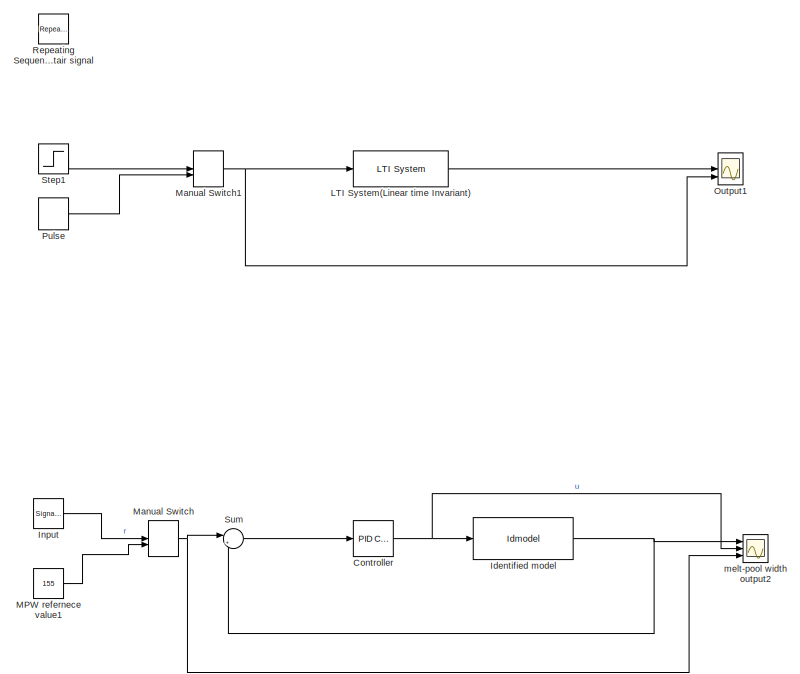
[diagram: root canvas - part 1/3, top right region]
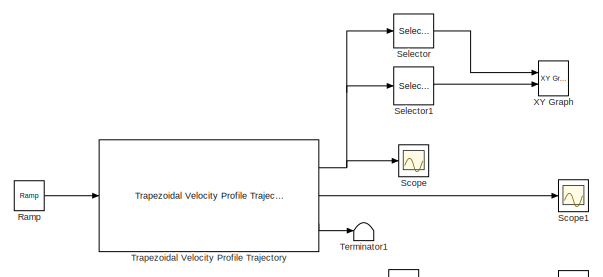
[diagram: root canvas - part 2/3, middle left region]
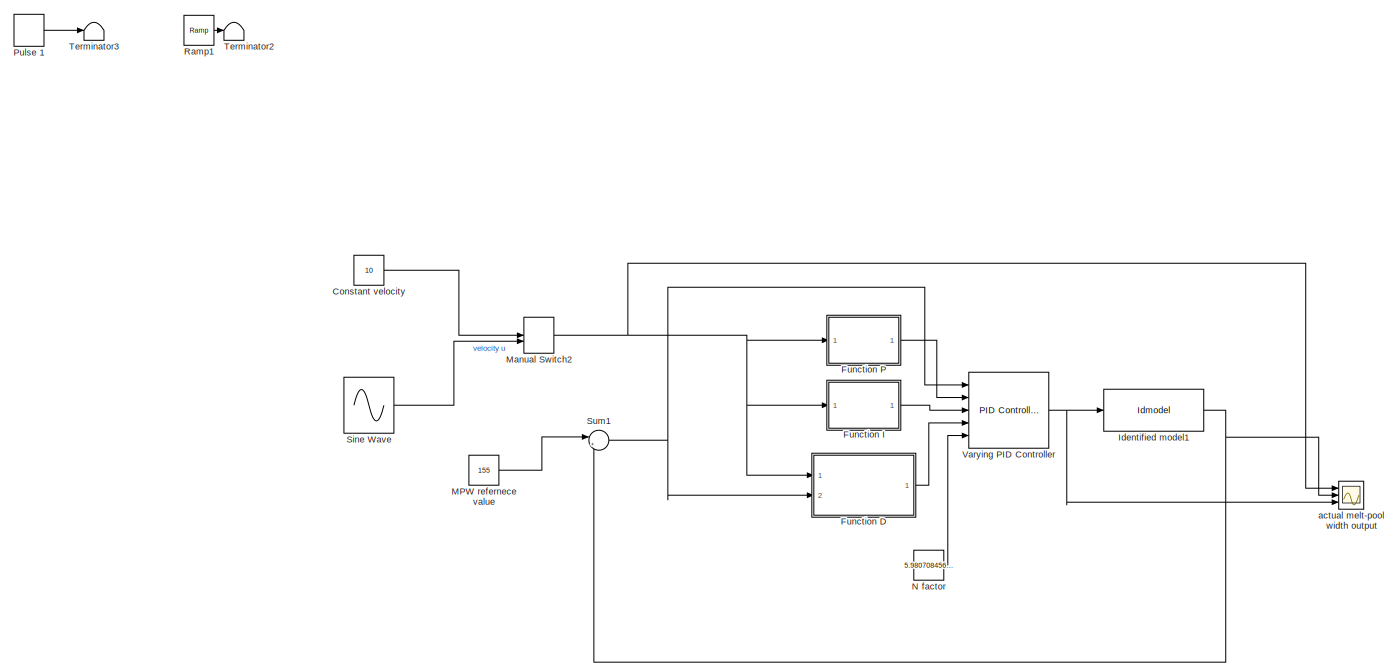
[diagram: root canvas - part 3/3, full width, bottom band]
MODEL slx_77fdc02588f1
KIND model
CONFIG AbsTol = auto
CONFIG EnableMultiTasking = off
CONFIG FixedStep = auto
CONFIG MaxStep = auto
CONFIG MinStep = auto
CONFIG RelTol = 1e-3
CONFIG SampleTimeConstraint = Unconstrained
CONFIG Solver = VariableStepAuto
CONFIG SolverName = VariableStepAuto
CONFIG StartTime = 0.0
CONFIG StopTime = 10
BLOCK [Constant] Constant velocity
  Value = 10
BLOCK [Reference] Controller  REF=simulink/Continuous/PID Controller
  Ports = [1, 1]
  SourceBlock = simulink/Continuous/PID Controller
  SourceProductBaseCode = SL
  SourceType = PID 1dof
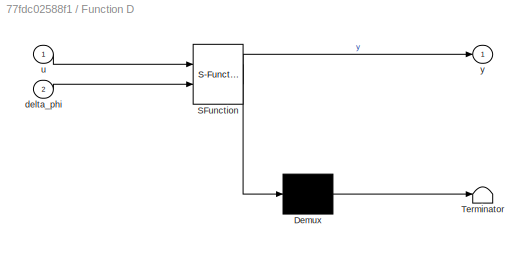
BLOCK [SubSystem] Function D
  ErrorFcn = Stateflow.Translate.translate
  PermitHierarchicalResolution = ExplicitOnly
  Ports = [2, 1]
  RequestExecContextInheritance = off
  SFBlockType = MATLAB Function
  TreatAsAtomicUnit = on
BLOCK [Demux] Function D/ Demux 
  Outputs = 1
  Ports = [1, 1]
BLOCK [S-Function] Function D/ SFunction 
  EnableBusSupport = on
  FunctionName = sf_sfun
  PortCounts = [2 2]
  Ports = [2, 2]
  SFcnIsStateOwnerBlock = off
  SFunctionDeploymentMode = off
  Tag = Stateflow S-Function Lasermeltpool_controller_simulink_design_1 3
BLOCK [Terminator] Function D/ Terminator 
BLOCK [Inport] Function D/delta_phi
  IconDisplay = Port number
  Port = 2
BLOCK [Inport] Function D/u
  IconDisplay = Port number
BLOCK [Outport] Function D/y
  IconDisplay = Port number
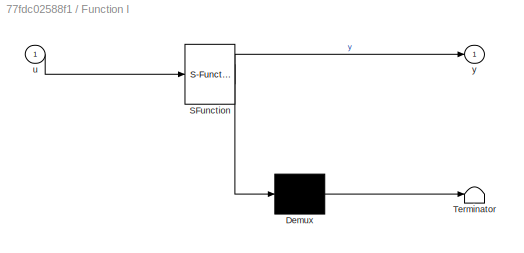
BLOCK [SubSystem] Function I
  ErrorFcn = Stateflow.Translate.translate
  PermitHierarchicalResolution = ExplicitOnly
  Ports = [1, 1]
  RequestExecContextInheritance = off
  SFBlockType = MATLAB Function
  TreatAsAtomicUnit = on
BLOCK [Demux] Function I/ Demux 
  Outputs = 1
  Ports = [1, 1]
BLOCK [S-Function] Function I/ SFunction 
  EnableBusSupport = on
  FunctionName = sf_sfun
  PortCounts = [1 2]
  Ports = [1, 2]
  SFcnIsStateOwnerBlock = off
  SFunctionDeploymentMode = off
  Tag = Stateflow S-Function Lasermeltpool_controller_simulink_design_1 1
BLOCK [Terminator] Function I/ Terminator 
BLOCK [Inport] Function I/u
  IconDisplay = Port number
BLOCK [Outport] Function I/y
  IconDisplay = Port number
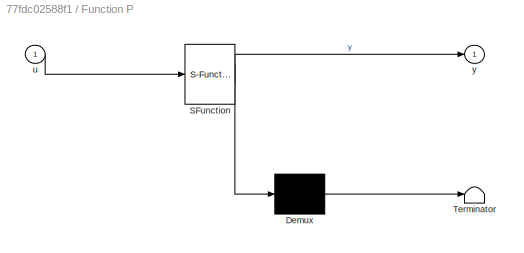
BLOCK [SubSystem] Function P
  ErrorFcn = Stateflow.Translate.translate
  PermitHierarchicalResolution = ExplicitOnly
  Ports = [1, 1]
  RequestExecContextInheritance = off
  SFBlockType = MATLAB Function
  TreatAsAtomicUnit = on
BLOCK [Demux] Function P/ Demux 
  Outputs = 1
  Ports = [1, 1]
BLOCK [S-Function] Function P/ SFunction 
  EnableBusSupport = on
  FunctionName = sf_sfun
  PortCounts = [1 2]
  Ports = [1, 2]
  SFcnIsStateOwnerBlock = off
  SFunctionDeploymentMode = off
  Tag = Stateflow S-Function Lasermeltpool_controller_simulink_design_1 2
BLOCK [Terminator] Function P/ Terminator 
BLOCK [Inport] Function P/u
  IconDisplay = Port number
BLOCK [Outport] Function P/y
  IconDisplay = Port number
BLOCK [Reference] Identified model  REF=slident/Models/Idmodel  (lib defined in mdl_f7d4911ca73a)
  Ports = [1, 1]
  SourceBlock = slident/Models/Idmodel
  SourceProductBaseCode = ID
  SourceType = Idmodel Block
BLOCK [Reference] Identified model1  REF=slident/Models/Idmodel  (lib defined in mdl_f7d4911ca73a)
  Ports = [1, 1]
  SourceBlock = slident/Models/Idmodel
  SourceProductBaseCode = ID
  SourceType = Idmodel Block
BLOCK [SignalGenerator] Input
  Ports = [0, 1]
BLOCK [Reference] LTI System(Linear time Invariant)  REF=cstblocks/LTI System
  Ports = [1, 1]
  SourceBlock = cstblocks/LTI System
  SourceProductBaseCode = CT
  SourceType = LTI Block
BLOCK [Constant] MPW refernece value
  Value = 155
BLOCK [Constant] MPW refernece value1
  Value = 155
BLOCK [ManualSwitch] Manual Switch
  CurrentSetting = 0
BLOCK [ManualSwitch] Manual Switch1
BLOCK [ManualSwitch] Manual Switch2
  CurrentSetting = 0
BLOCK [Constant] N factor
  Value = 5.98070845652539
BLOCK [Scope] Output1
  Floating = off
  NumInputPorts = 3
  Ports = [3]
  ScopeSpecificationString = Simulink.scopes.TimeScopeBlockCfg('CurrentConfiguration', extmgr.ConfigurationSet(extmgr.Configuration('Core','General UI',true),extmgr.Configuration('Core','Source UI',true),extmgr.Configuration('Sources','WiredSimulink',true,'DataLoggingVariableName','ScopeData1'),extmgr.Configuration('Visuals','Time Domain',true,'SerializedDisplays',{struct('MinYLimReal','-21.0905','MaxYLimReal','189.81454','YL...<+1458ch>
BLOCK [DiscretePulseGenerator] Pulse 
  Amplitude = 3.8
  Period = 10
  Ports = [0, 1]
  PulseType = Time based
  PulseWidth = 5
BLOCK [DiscretePulseGenerator] Pulse 1
  Amplitude = 10
  Period = 10
  Ports = [0, 1]
  PulseType = Time based
  PulseWidth = 95
BLOCK [Reference] Ramp  REF=simulink/Sources/Ramp
  Ports = [0, 1]
  SourceBlock = simulink/Sources/Ramp
  SourceProductBaseCode = SL
  SourceProductName = Simulink
  SourceType = Ramp
BLOCK [Reference] Ramp1  REF=simulink/Sources/Ramp
  Ports = [0, 1]
  SourceBlock = simulink/Sources/Ramp
  SourceProductBaseCode = SL
  SourceProductName = Simulink
  SourceType = Ramp
BLOCK [Reference] Repeating Sequence Stair signal  REF=simulink/Sources/Repeating
Sequence
Stair
  Ports = [0, 1]
  SourceBlock = simulink/Sources/Repeating\nSequence\nStair
  SourceProductBaseCode = SL
  SourceType = Repeating Sequence Stair
BLOCK [Scope] Scope
  Floating = off
  NumInputPorts = 1
  Ports = [1]
  ScopeSpecificationString = Simulink.scopes.TimeScopeBlockCfg('CurrentConfiguration', extmgr.ConfigurationSet(extmgr.Configuration('Core','General UI',true),extmgr.Configuration('Core','Source UI',true),extmgr.Configuration('Sources','WiredSimulink',true,'DataLoggingVariableName','ScopeData1'),extmgr.Configuration('Visuals','Time Domain',true,'SerializedDisplays',{struct('MinYLimReal','-1.24949','MaxYLimReal','1.24994','YLab...<+1477ch>
BLOCK [Scope] Scope1
  Floating = off
  NumInputPorts = 1
  Ports = [1]
  ScopeSpecificationString = Simulink.scopes.TimeScopeBlockCfg('CurrentConfiguration', extmgr.ConfigurationSet(extmgr.Configuration('Core','General UI',true),extmgr.Configuration('Core','Source UI',true),extmgr.Configuration('Sources','WiredSimulink',true,'DataLoggingVariableName','ScopeData2'),extmgr.Configuration('Visuals','Time Domain',true,'SerializedDisplays',{struct('MinYLimReal','-1.21875','MaxYLimReal','3.46875','YLab...<+1477ch>
BLOCK [Selector] Selector
  IndexOptions = Index vector (dialog)
  Indices = 1
  InputPortWidth = 2
  OutputSizes = 1
  Ports = [1, 1]
BLOCK [Selector] Selector1
  IndexOptions = Index vector (dialog)
  Indices = 2
  InputPortWidth = 2
  OutputSizes = 1
  Ports = [1, 1]
BLOCK [Sin] Sine Wave
  Amplitude = 0.1
  Bias = 10
  Frequency = 20
  Ports = [0, 1]
  SampleTime = 0.033
BLOCK [Step] Step1
  After = 3.8
  SampleTime = 0
BLOCK [Sum] Sum
  IconShape = round
  InputSameDT = off
  Inputs = |+-
  OutDataTypeStr = Inherit: Inherit via internal rule
  Ports = [2, 1]
  SaturateOnIntegerOverflow = off
BLOCK [Sum] Sum1
  IconShape = round
  InputSameDT = off
  Inputs = |+-
  OutDataTypeStr = Inherit: Inherit via internal rule
  Ports = [2, 1]
  SaturateOnIntegerOverflow = off
BLOCK [Terminator] Terminator1
BLOCK [Terminator] Terminator2
BLOCK [Terminator] Terminator3
BLOCK [Reference] Trapezoidal Velocity Profile Trajectory  REF=robotcorelib/Trapezoidal Velocity Profile Trajectory
  Ports = [1, 3]
  SourceBlock = robotcorelib/Trapezoidal Velocity Profile Trajectory
  SourceProductBaseCode = RO
  SourceProductName = Robotics System Toolbox
  SourceType = robotics.slcore.internal.block.TrapVelTrajSys
BLOCK [Reference] Varying PID Controller  REF=simulink/Continuous/PID Controller
  Ports = [5, 1]
  SourceBlock = simulink/Continuous/PID Controller
  SourceProductBaseCode = SL
  SourceType = PID 1dof
BLOCK [Reference] XY Graph  REF=simulink/Sinks/XY Graph
  Ports = [2]
  SourceBlock = simulink/Sinks/XY Graph
  SourceProductBaseCode = SL
  SourceProductName = Simulink
  SourceType = XY scope.
BLOCK [Scope] actual melt-pool width output
  Floating = off
  NumInputPorts = 3
  Ports = [3]
  ScopeSpecificationString = Simulink.scopes.TimeScopeBlockCfg('CurrentConfiguration', extmgr.ConfigurationSet(extmgr.Configuration('Core','General UI',true),extmgr.Configuration('Core','Source UI',true),extmgr.Configuration('Sources','WiredSimulink',true,'DataLoggingVariableName','ScopeData1'),extmgr.Configuration('Visuals','Time Domain',true,'SerializedDisplays',{struct('MinYLimReal','-121.24645','MaxYLimReal','395.10269','...<+1461ch>
BLOCK [Scope] melt-pool width output2
  Floating = off
  NumInputPorts = 3
  Ports = [3]
  ScopeSpecificationString = Simulink.scopes.TimeScopeBlockCfg('CurrentConfiguration', extmgr.ConfigurationSet(extmgr.Configuration('Core','General UI',true),extmgr.Configuration('Core','Source UI',true),extmgr.Configuration('Sources','WiredSimulink',true),extmgr.Configuration('Visuals','Time Domain',true,'SerializedDisplays',{struct('MinYLimReal','-19.375','MaxYLimReal','174.375','YLabelReal','','MinYLimMag','0.00000','MaxYL...<+1383ch>
LINE Constant velocity:1 -> Manual Switch2:1
NET Controller:1 -> Identified model:1, melt-pool width output2:2
LINE Function D:1 -> Varying PID Controller:4
LINE Function I:1 -> Varying PID Controller:3
LINE Function P:1 -> Varying PID Controller:2
NET Identified model1:1 -> Sum1:2, actual melt-pool width output:2
NET Identified model:1 -> Sum:2, melt-pool width output2:1
LINE Input:1 -> Manual Switch:1
LINE LTI System(Linear time Invariant):1 -> Output1:2
LINE MPW refernece value1:1 -> Manual Switch:2
LINE MPW refernece value:1 -> Sum1:1
NET Manual Switch1:1 -> LTI System(Linear time Invariant):1, Output1:3
NET Manual Switch2:1 -> Function D:1, Function I:1, Function P:1, actual melt-pool width output:1
NET Manual Switch:1 -> Sum:1, melt-pool width output2:3
LINE N factor:1 -> Varying PID Controller:5
LINE Pulse 1:1 -> Terminator3:1
LINE Pulse :1 -> Manual Switch1:2
LINE Ramp1:1 -> Terminator2:1
LINE Ramp:1 -> Trapezoidal Velocity Profile Trajectory:1
LINE Selector1:1 -> XY Graph:2
LINE Selector:1 -> XY Graph:1
LINE Sine Wave:1 -> Manual Switch2:2
LINE Step1:1 -> Manual Switch1:1
NET Sum1:1 -> Function D:2, Varying PID Controller:1
LINE Sum:1 -> Controller:1
NET Trapezoidal Velocity Profile Trajectory:1 -> Scope:1, Selector1:1, Selector:1
LINE Trapezoidal Velocity Profile Trajectory:2 -> Scope1:1
LINE Trapezoidal Velocity Profile Trajectory:3 -> Terminator1:1
NET Varying PID Controller:1 -> Identified model1:1, actual melt-pool width output:3
note: NET lines group one-source signal fan-out (src -> all destinations, sorted); 1:1 wires keep LINE
CHART Function I states=1 transitions=1
  STATE_LABEL 'eML_blk_kernel()'
  STATE_LABEL 'SCRIPT:\nfunction y = fcn(u)\n\n% I control action: eliminates steady states error, but will result\n% oscillarity \n\nKi0 = 0.0341648755105015; % nominal value of Ki\n\ny = Ki0;\n\n\nend   \n\n\n'
CHART Function P states=1 transitions=1
  STATE_LABEL 'eML_blk_kernel()'
  STATE_LABEL 'SCRIPT:\nfunction y = fcn(u)\n\n%This function calculates the required P parameters\n% according to the speed, u is speed here y is the output of calculation\n\nKp0 = 0.000563720445923274; % this is the nominal value of Kp gain， \n                          % which is get from pid tuning process\nu0 = 10; % nominal value of the speed \ny = Kp0; % assign output to the Kp0 as defult\n\nalpha = 0.00033; % coeffi...<+354ch>'
CHART Function D states=1 transitions=1
  STATE_LABEL 'eML_blk_kernel()'
  STATE_LABEL 'SCRIPT:\nfunction y = fcn(u, delta_phi)\n% D control action: improve stability, increase damping(decrease\n% oscillation), sensitive to noise. imporve transient response. \n\nKd0 = -0.000108487487850706; % norminal Kd gain\nu0 = 10;\nalpha = 0.0003; % coefficient of Kd changing\n\nKd = Kd0;\n\nif (u > u0) \n    if (delta_phi > 0)\n        % decrease power, with Kd gain inversly propotional to speed change\n    ...<+496ch>'
